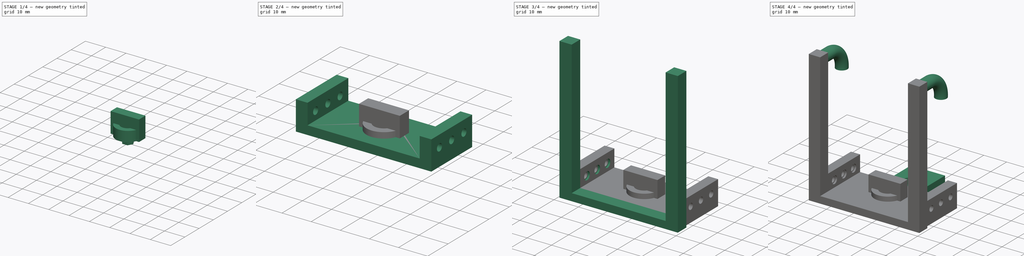
[diagram: build sequence overview — one tinted view per stage of 4, left to right]
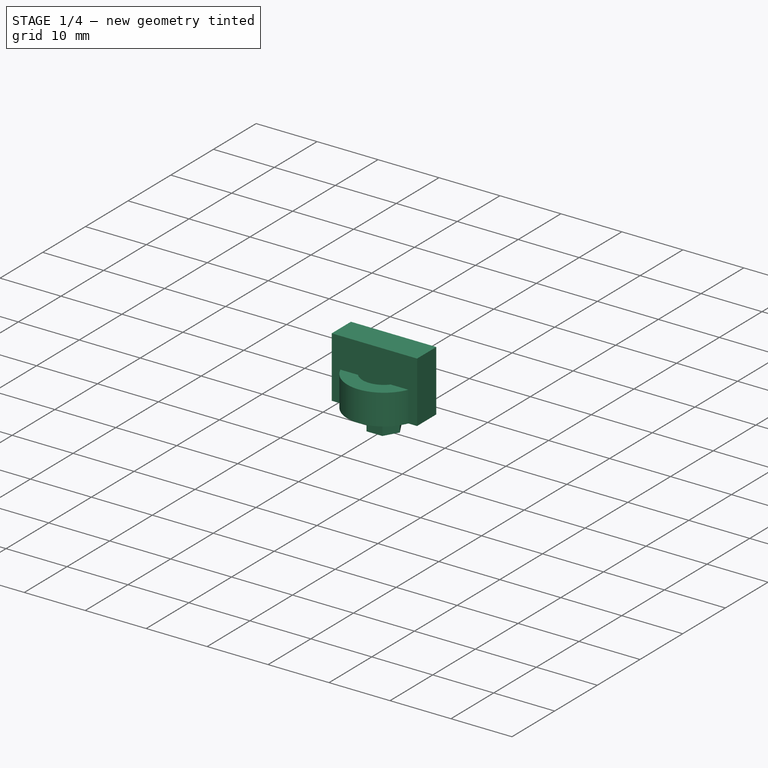
[diagram: stage 1 of 4 — iso view after this stage's code; geometry added in this stage tinted green]
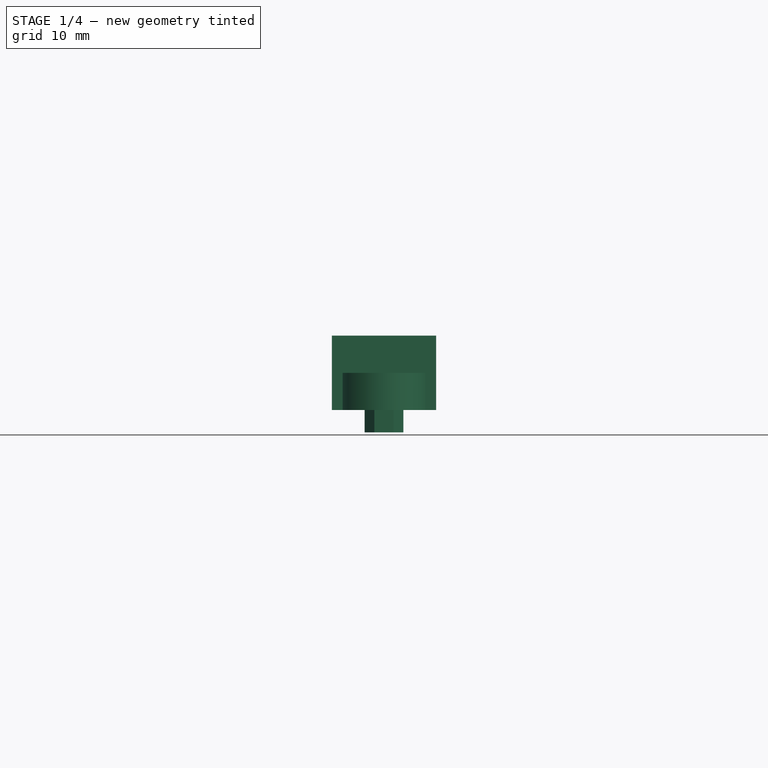
[diagram: stage 1 of 4 — front view after this stage's code; geometry added in this stage tinted green]
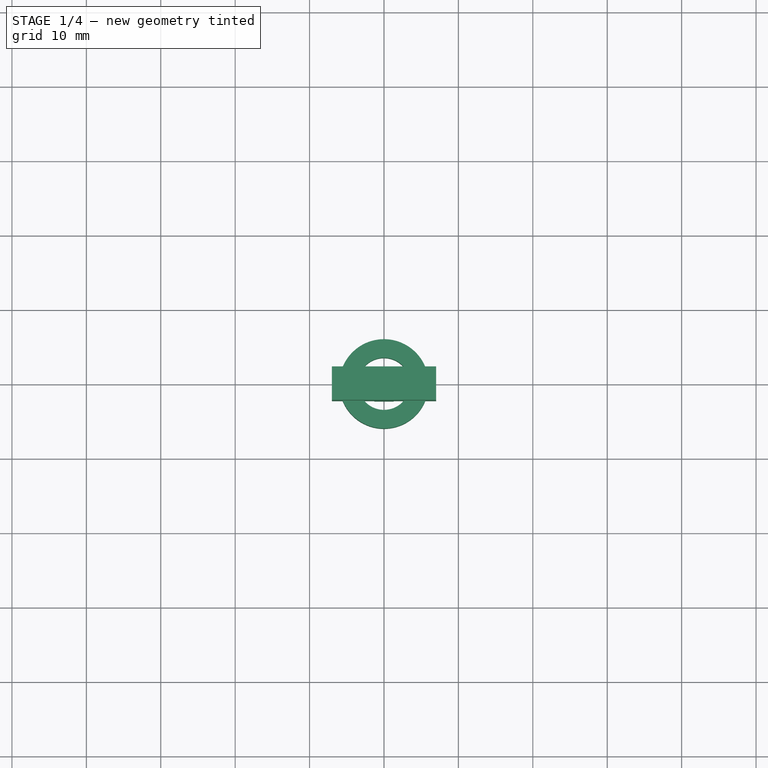
[diagram: stage 1 of 4 — top view after this stage's code; geometry added in this stage tinted green]
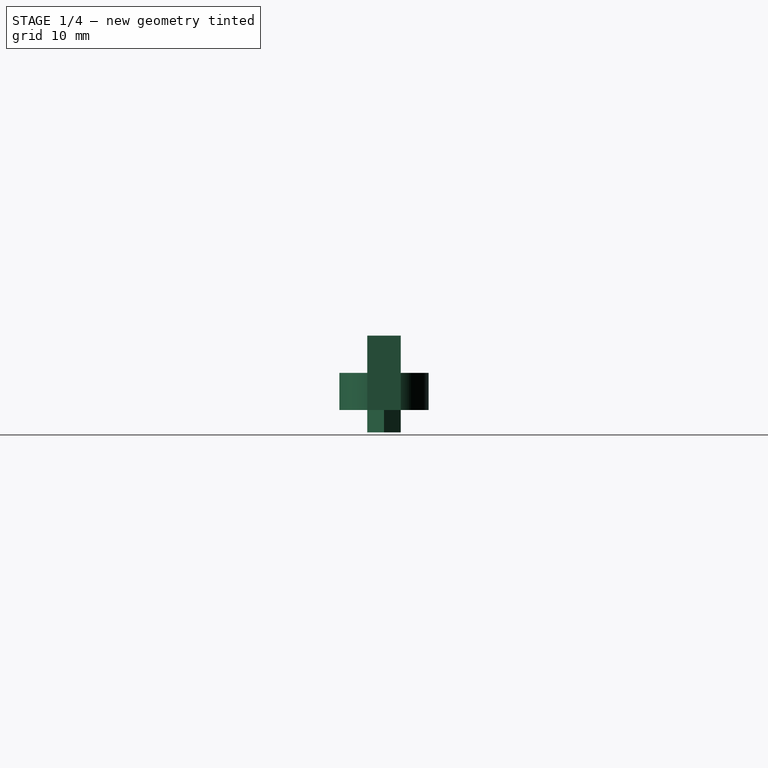
[diagram: stage 1 of 4 — right view after this stage's code; geometry added in this stage tinted green]
FCSTD DOCUMENT  (FreeCAD 0.19R24291 (Git))
Label: camerahd-holder
License: All rights reserved
LicenseURL: http://en.wikipedia.org/wiki/All_rights_reserved
objects: Sketcher::SketchObject×11, PartDesign::Pad×7, PartDesign::Body×3, PartDesign::Pocket×2, PartDesign::AdditivePipe×1, PartDesign::Mirrored×1
note: 35 computed .brp shape members not serialized (recipe doc carries the construction recipe); baked Part::Feature solids carry a one-line shape summary decoded from their .brp

FEATURE [PartDesign::Body] Body  label="-"
  Group = -> [Sketch,Pad,Sketch001,Pad001,Sketch002,Pocket,Sketch003,Pocket001,Sketch004,Pad002,Sketch005,Sketch006,AdditivePipe,Mirrored,Sketch007,Pad003]
  Origin = -> Origin
  Tip = -> Pad003
FEATURE [Sketcher::SketchObject] Sketch008
  FullyConstrained = true
  MapMode = 5
  Support = -> [XY_Plane001]
  sketch-geometry (2):
    g0: Circle CenterX=0 CenterY=0 CenterZ=0 NormalX=0 NormalY=0 NormalZ=1 AngleXU=0 Radius=6
    g1: Circle CenterX=0 CenterY=0 CenterZ=0 NormalX=0 NormalY=0 NormalZ=1 AngleXU=0 Radius=3.5
  constraints (4):
    c: Coincident(g0,g-1)
    c: Coincident(g1,g0)
    c: Diameter(g1) = 7
    c: Diameter(g0) = 12
FEATURE [PartDesign::Pad] Pad004
  Direction = (1,1,1)
  Length = 5
  Length2 = 100
  Profile = -> Sketch008
  Type = 0
FEATURE [PartDesign::Body] Body001  label="spacer"
  Group = -> [Sketch008,Pad004]
  Origin = -> Origin001
  Tip = -> Pad004
FEATURE [Sketcher::SketchObject] Sketch009
  FullyConstrained = true
  MapMode = 5
  Support = -> [XY_Plane002]
  sketch-geometry (7):
    g0: LineSegment StartX=-1.29904 StartY=-2.25 StartZ=0 EndX=1.29904 EndY=-2.25 EndZ=0
    g1: LineSegment StartX=1.29904 StartY=-2.25 StartZ=0 EndX=2.59808 EndY=1.1835e-11 EndZ=0
    g2: LineSegment StartX=2.59808 StartY=1.18348e-11 StartZ=0 EndX=1.29904 EndY=2.25 EndZ=0
    g3: LineSegment StartX=1.29904 StartY=2.25 StartZ=0 EndX=-1.29904 EndY=2.25 EndZ=0
    g4: LineSegment StartX=-1.29904 StartY=2.25 StartZ=0 EndX=-2.59808 EndY=-8.145e-13 EndZ=0
    g5: LineSegment StartX=-2.59808 StartY=-8.145e-13 StartZ=0 EndX=-1.29904 EndY=-2.25 EndZ=0
    g6: Circle CenterX=0 CenterY=0 CenterZ=0 NormalX=0 NormalY=0 NormalZ=1 AngleXU=0 Radius=2.59808
  constraints (16):
    c: Coincident(g0,g1)
    c: Coincident(g1,g2)
    c: Coincident(g2,g3)
    c: Coincident(g3,g4)
    c: Coincident(g4,g5)
    c: Coincident(g5,g0)
    c: Equal(g0, g1-g5) x5
    c: PointOnObject(g0,g6)
    c: PointOnObject(g1,g6)
    c: PointOnObject(g2,g6)
    c: PointOnObject(g3,g6)
    c: PointOnObject(g4,g6)
    c: PointOnObject(g5,g6)
    c: Coincident(g6,g-1)
    c: DistanceY(g0,g3) = 4.5
    c: Horizontal(g0)
FEATURE [PartDesign::Pad] Pad005
  Direction = (1,1,1)
  Length = 3
  Length2 = 100
  Profile = -> Sketch009
  Reversed = true
  Type = 0
FEATURE [Sketcher::SketchObject] Sketch010
  FullyConstrained = true
  MapMode = 5
  Support = -> [XY_Plane002]
  sketch-geometry (4):
    g0: LineSegment StartX=-7 StartY=2.25 StartZ=0 EndX=7 EndY=2.25 EndZ=0
    g1: LineSegment StartX=7 StartY=2.25 StartZ=0 EndX=7 EndY=-2.25 EndZ=0
    g2: LineSegment StartX=7 StartY=-2.25 StartZ=0 EndX=-7 EndY=-2.25 EndZ=0
    g3: LineSegment StartX=-7 StartY=-2.25 StartZ=0 EndX=-7 EndY=2.25 EndZ=0
  constraints (10):
    c: Coincident(g0,g1)
    c: Coincident(g1,g2)
    c: Coincident(g2,g3)
    c: Coincident(g3,g0)
    c: Horizontal(g2)
    c: Vertical(g3)
    c: Symmetric(g1,g0,g-1)
    c: DistanceY(g1,g1) = 4.5
    c: Symmetric(g0,g0,g-2)
    c: DistanceX(g0,g0) = 14
FEATURE [PartDesign::Pad] Pad006
  BaseFeature = -> Pad005
  Direction = (1,1,1)
  Length = 10
  Length2 = 100
  Profile = -> Sketch010
  Type = 0
FEATURE [PartDesign::Body] Body002  label="bits"
  Group = -> [Sketch009,Pad005,Sketch010,Pad006]
  Origin = -> Origin002
  Tip = -> Pad006
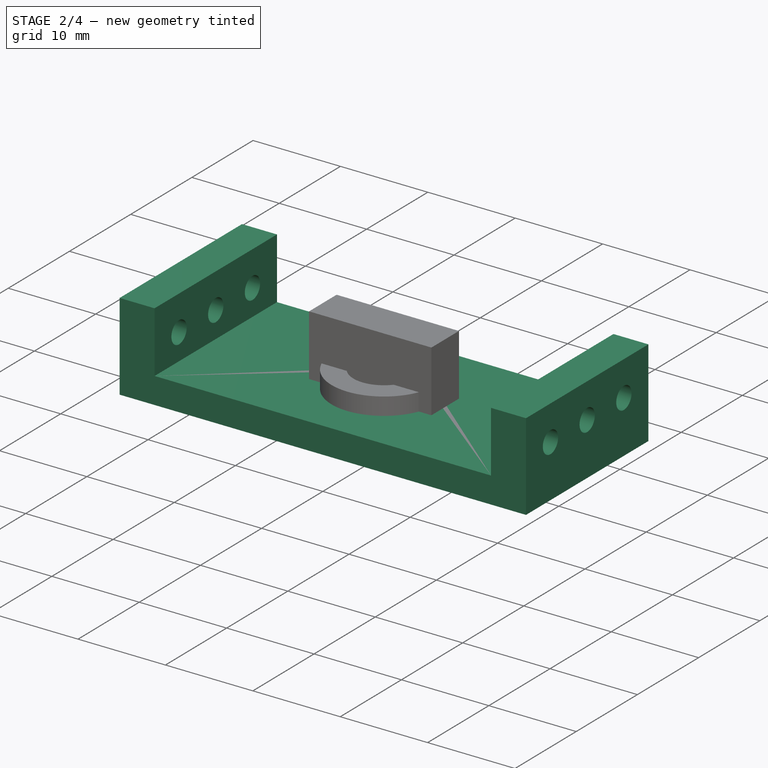
[diagram: stage 2 of 4 — iso view after this stage's code; geometry added in this stage tinted green]
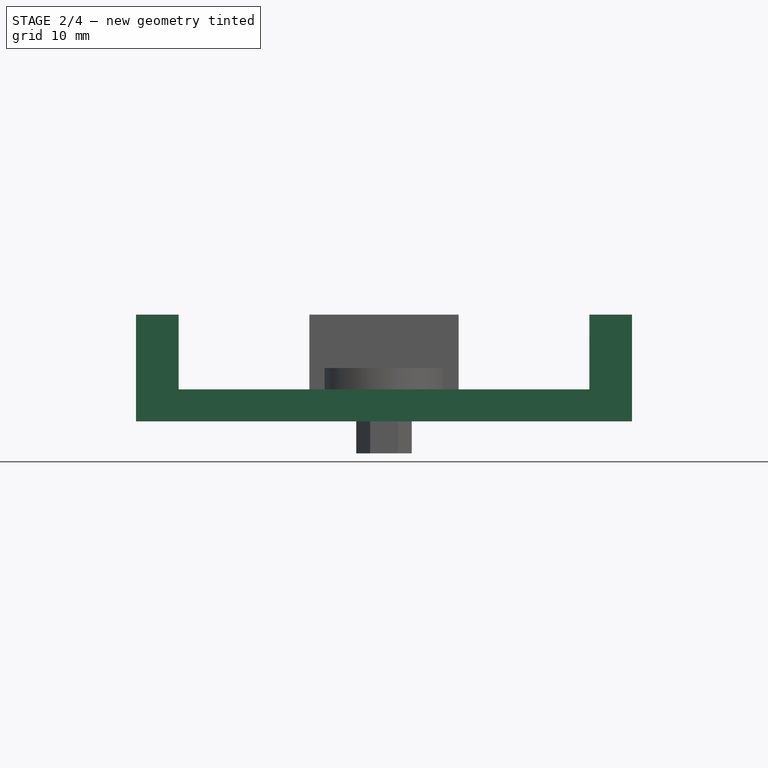
[diagram: stage 2 of 4 — front view after this stage's code; geometry added in this stage tinted green]
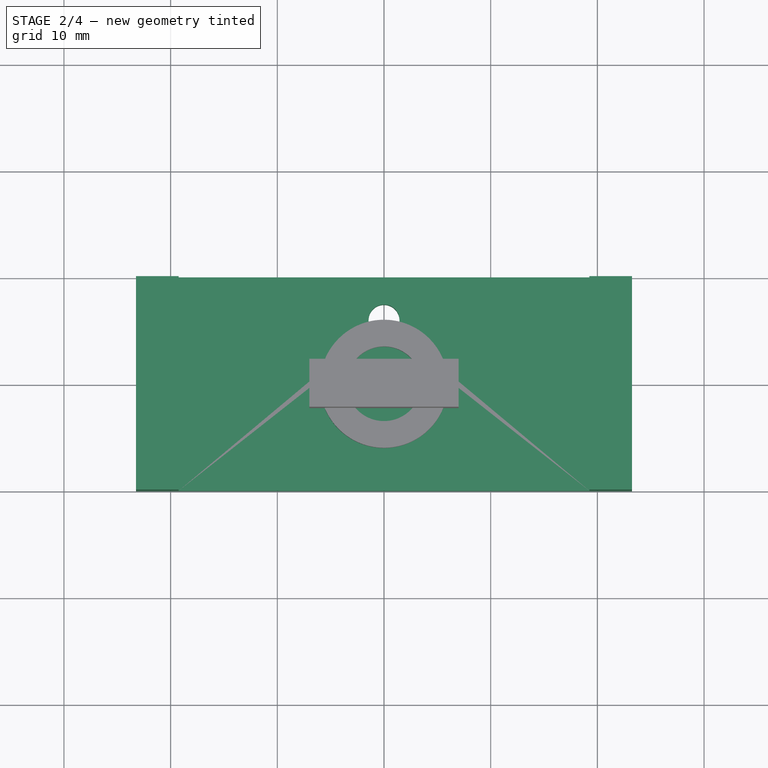
[diagram: stage 2 of 4 — top view after this stage's code; geometry added in this stage tinted green]
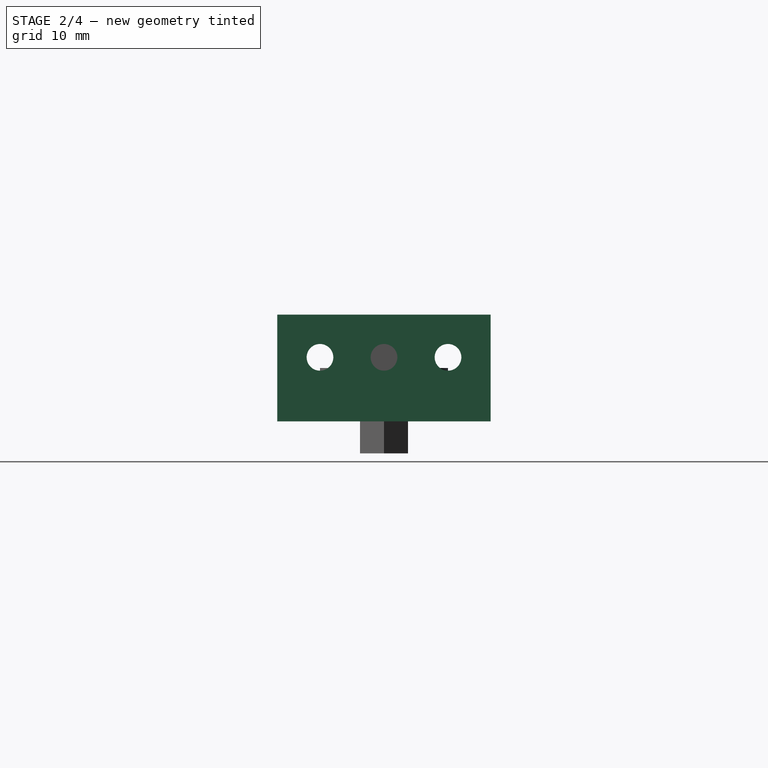
[diagram: stage 2 of 4 — right view after this stage's code; geometry added in this stage tinted green]
FEATURE [Sketcher::SketchObject] Sketch
  FullyConstrained = true
  MapMode = 5
  Support = -> [XY_Plane]
  sketch-geometry (5):
    g0: LineSegment StartX=-19.25 StartY=10 StartZ=0 EndX=19.25 EndY=10 EndZ=0
    g1: LineSegment StartX=19.25 StartY=10 StartZ=0 EndX=19.25 EndY=-10 EndZ=0
    g2: LineSegment StartX=19.25 StartY=-10 StartZ=0 EndX=-19.25 EndY=-10 EndZ=0
    g3: LineSegment StartX=-19.25 StartY=-10 StartZ=0 EndX=-19.25 EndY=10 EndZ=0
    g4: Circle CenterX=0 CenterY=6 CenterZ=0 NormalX=0 NormalY=0 NormalZ=1 AngleXU=0 Radius=1.45
  constraints (13):
    c: Coincident(g0,g1)
    c: Coincident(g1,g2)
    c: Coincident(g2,g3)
    c: Coincident(g3,g0)
    c: Horizontal(g2)
    c: Vertical(g3)
    c: Symmetric(g1,g0,g-1)
    c: Symmetric(g0,g0,g-2)
    c: DistanceX(g0,g0) = 38.5
    c: DistanceY(g3,g3) = 20
    c: Diameter(g4) = 2.9
    c: PointOnObject(g4,g-2)
    c: DistanceY(g-1,g4) = 6
FEATURE [PartDesign::Pad] Pad
  Direction = (1,1,1)
  Length = 3
  Length2 = 100
  Profile = -> Sketch
  Type = 0
FEATURE [Sketcher::SketchObject] Sketch001
  FullyConstrained = true
  MapMode = 5
  Placement = pos=(0,0,0) rot=(1,0,0;1.5708rad)
  Support = -> [XZ_Plane]
  sketch-geometry (8):
    g0: LineSegment StartX=19.25 StartY=0 StartZ=0 EndX=23.25 EndY=0 EndZ=0
    g1: LineSegment StartX=23.25 StartY=0 StartZ=0 EndX=23.25 EndY=10 EndZ=0
    g2: LineSegment StartX=23.25 StartY=10 StartZ=0 EndX=19.25 EndY=10 EndZ=0
    g3: LineSegment StartX=19.25 StartY=10 StartZ=0 EndX=19.25 EndY=0 EndZ=0
    g4: LineSegment StartX=-23.25 StartY=10 StartZ=0 EndX=-19.25 EndY=10 EndZ=0
    g5: LineSegment StartX=-19.25 StartY=10 StartZ=0 EndX=-19.25 EndY=0 EndZ=0
    g6: LineSegment StartX=-19.25 StartY=0 StartZ=0 EndX=-23.25 EndY=0 EndZ=0
    g7: LineSegment StartX=-23.25 StartY=0 StartZ=0 EndX=-23.25 EndY=10 EndZ=0
  constraints (23):
    c: Coincident(g0,g1)
    c: Coincident(g1,g2)
    c: Coincident(g2,g3)
    c: Coincident(g3,g0)
    c: Horizontal(g0)
    c: Horizontal(g2)
    c: Vertical(g1)
    c: Vertical(g3)
    c: PointOnObject(g0,g-1)
    c: DistanceX(g0) = 19.25
    c: DistanceX(g2,g2) = 4
    c: DistanceY(g1,g1) = 10
    c: Coincident(g4,g5)
    c: Coincident(g5,g6)
    c: Coincident(g6,g7)
    c: Coincident(g7,g4)
    c: Horizontal(g4)
    c: Horizontal(g6)
    c: Vertical(g5)
    c: Vertical(g7)
    c: Symmetric(g5,g0,g-2)
    c: Horizontal(g4,g2)
    c: Equal(g4,g2)
FEATURE [PartDesign::Pad] Pad001
  BaseFeature = -> Pad
  Direction = (1,1,1)
  Length = 20
  Length2 = 100
  Midplane = true
  Profile = -> Sketch001
  Type = 0
FEATURE [Sketcher::SketchObject] Sketch002
  FullyConstrained = true
  MapMode = 5
  Placement = pos=(-23.25,0,0) rot=(0.57735,-0.57735,-0.57735;2.0944rad)
  Support = -> [Pad001]
  sketch-geometry (3):
    g0: Circle CenterX=-6 CenterY=6 CenterZ=0 NormalX=0 NormalY=0 NormalZ=1 AngleXU=0 Radius=1.25
    g1: Circle CenterX=6 CenterY=6 CenterZ=0 NormalX=0 NormalY=0 NormalZ=1 AngleXU=0 Radius=1.25
    g2: Circle CenterX=0 CenterY=6 CenterZ=0 NormalX=0 NormalY=0 NormalZ=1 AngleXU=0 Radius=1.25
  constraints (8):
    c: PointOnObject(g2,g-2)
    c: Diameter(g1) = 2.5
    c: Equal(g1,g2)
    c: Equal(g1,g0)
    c: Symmetric(g0,g1,g-2)
    c: Horizontal(g0,g2)
    c: DistanceX(g0,g2) = 6
    c: DistanceY(g-1,g2) = 6
FEATURE [PartDesign::Pocket] Pocket
  BaseFeature = -> Pad001
  Length = 5
  Length2 = 100
  Profile = -> Sketch002
  Type = 1
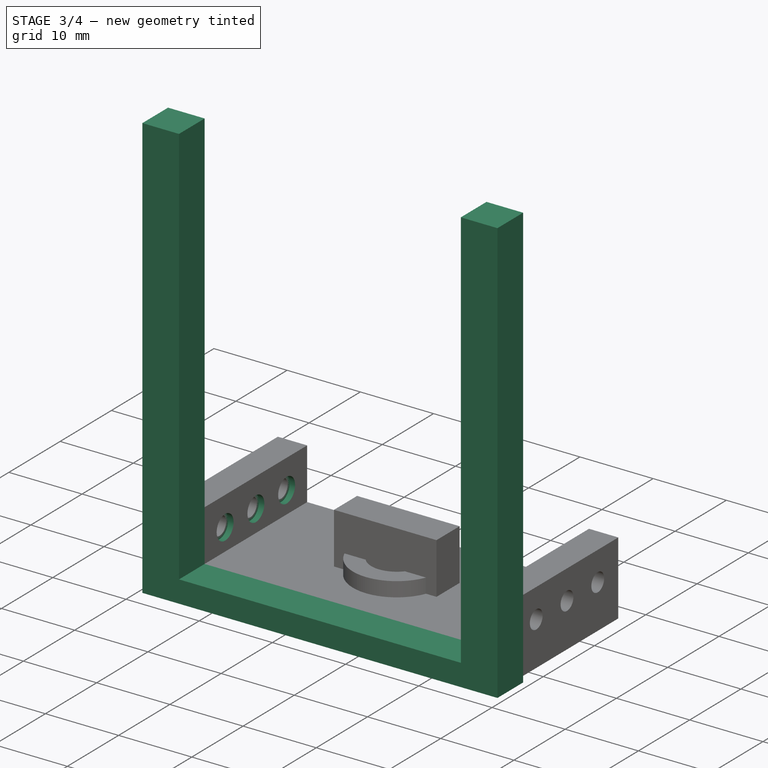
[diagram: stage 3 of 4 — iso view after this stage's code; geometry added in this stage tinted green]
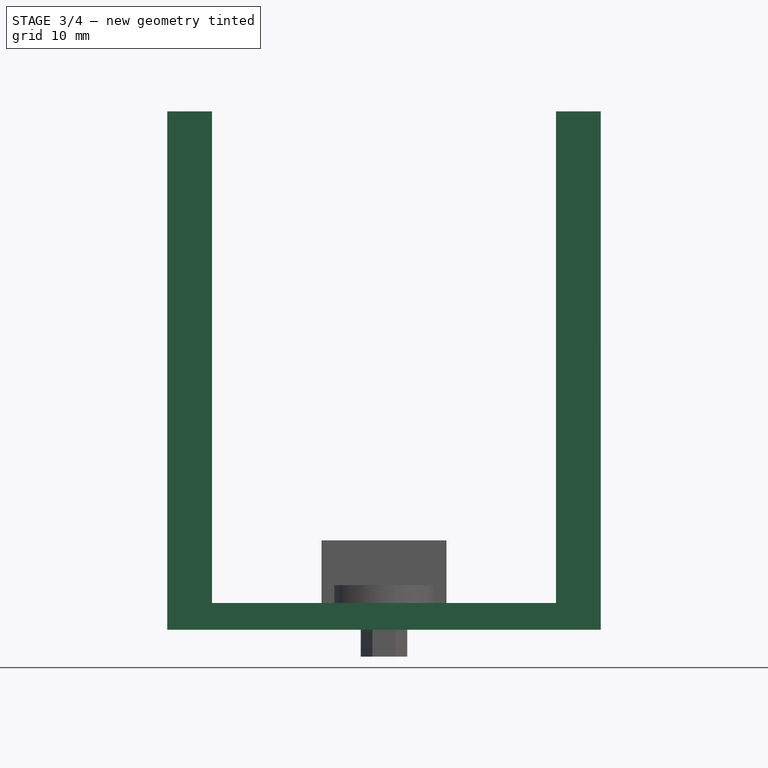
[diagram: stage 3 of 4 — front view after this stage's code; geometry added in this stage tinted green]
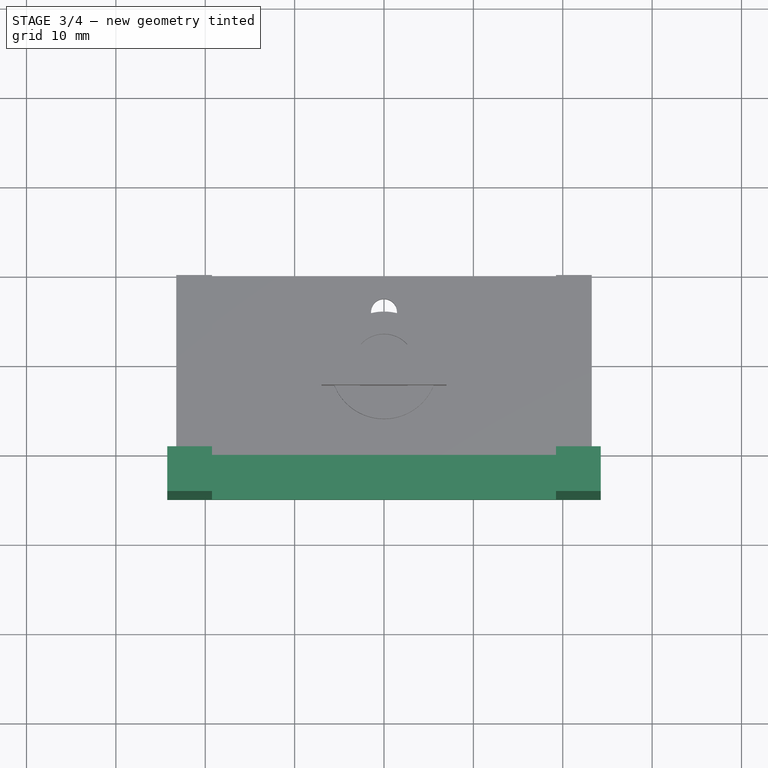
[diagram: stage 3 of 4 — top view after this stage's code; geometry added in this stage tinted green]
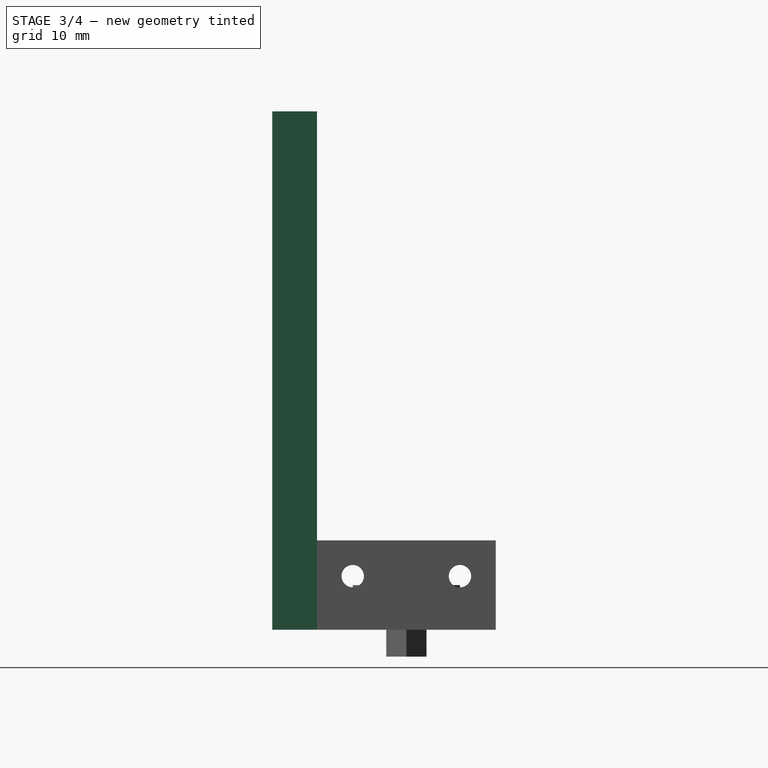
[diagram: stage 3 of 4 — right view after this stage's code; geometry added in this stage tinted green]
FEATURE [Sketcher::SketchObject] Sketch003
  FullyConstrained = true
  MapMode = 5
  Placement = pos=(0,0,0) rot=(0.57735,0.57735,0.57735;2.0944rad)
  Support = -> [YZ_Plane]
  sketch-geometry (3):
    g0: Circle CenterX=0 CenterY=6 CenterZ=0 NormalX=0 NormalY=0 NormalZ=1 AngleXU=0 Radius=1.65
    g1: Circle CenterX=6 CenterY=6 CenterZ=0 NormalX=0 NormalY=0 NormalZ=1 AngleXU=0 Radius=1.65
    g2: Circle CenterX=-6 CenterY=6 CenterZ=0 NormalX=0 NormalY=0 NormalZ=1 AngleXU=0 Radius=1.65
  constraints (8):
    c: PointOnObject(g0,g-2)
    c: Horizontal(g1,g0)
    c: Symmetric(g2,g1,g-2)
    c: DistanceX(g2,g1) = 12
    c: DistanceY(g0) = 6
    c: Diameter(g2) = 3.3
    c: Equal(g2,g0)
    c: Equal(g2,g1)
FEATURE [PartDesign::Pocket] Pocket001
  BaseFeature = -> Pocket
  Length = 40
  Length2 = 100
  Midplane = true
  Profile = -> Sketch003
  Type = 0
FEATURE [Sketcher::SketchObject] Sketch004
  FullyConstrained = true
  MapMode = 5
  Placement = pos=(0,-10,0) rot=(1,0,0;1.5708rad)
  Support = -> [Pocket001]
  sketch-geometry (10):
    g0: LineSegment StartX=19.25 StartY=0 StartZ=0 EndX=24.25 EndY=0 EndZ=0
    g1: LineSegment StartX=24.25 StartY=0 StartZ=0 EndX=24.25 EndY=58 EndZ=0
    g2: LineSegment StartX=24.25 StartY=58 StartZ=0 EndX=19.25 EndY=58 EndZ=0
    g3: LineSegment StartX=-24.25 StartY=58 StartZ=0 EndX=-19.25 EndY=58 EndZ=0
    g4: LineSegment StartX=-19.25 StartY=0 StartZ=0 EndX=-24.25 EndY=0 EndZ=0
    g5: LineSegment StartX=-24.25 StartY=0 StartZ=0 EndX=-24.25 EndY=58 EndZ=0
    g6: LineSegment StartX=-19.25 StartY=58 StartZ=0 EndX=-19.25 EndY=3 EndZ=0
    g7: LineSegment StartX=19.25 StartY=58 StartZ=0 EndX=19.25 EndY=3 EndZ=0
    g8: LineSegment StartX=-19.25 StartY=3 StartZ=0 EndX=19.25 EndY=3 EndZ=0
    g9: LineSegment StartX=-19.25 StartY=0 StartZ=0 EndX=19.25 EndY=0 EndZ=0
  constraints (29):
    c: Coincident(g0,g1)
    c: Coincident(g1,g2)
    c: Horizontal(g0)
    c: Horizontal(g2)
    c: Vertical(g1)
    c: PointOnObject(g0,g-1)
    c: DistanceY(g0,g2) = 58
    c: DistanceX(g-1,g0) = 19.25
    c: DistanceX(g0,g0) = 5
    c: Coincident(g4,g5)
    c: Coincident(g5,g3)
    c: Horizontal(g3)
    c: Horizontal(g4)
    c: Vertical(g5)
    c: Symmetric(g4,g0,g-2)
    c: Equal(g3,g2)
    c: Equal(g5,g1)
    c: Coincident(g6,g3)
    c: Vertical(g6)
    c: Coincident(g7,g2)
    c: Vertical(g7)
    c: Coincident(g8,g6)
    c: Coincident(g8,g7)
    c: Horizontal(g8)
    c: Vertical(g6,g4)
    c: Vertical(g7,g0)
    c: DistanceY(g4,g6) = 3
    c: Coincident(g9,g4)
    c: Coincident(g9,g0)
FEATURE [PartDesign::Pad] Pad002  label="tiang001"
  BaseFeature = -> Pocket001
  Direction = (1,1,1)
  Length = 5
  Length2 = 100
  Profile = -> Sketch004
  Type = 0
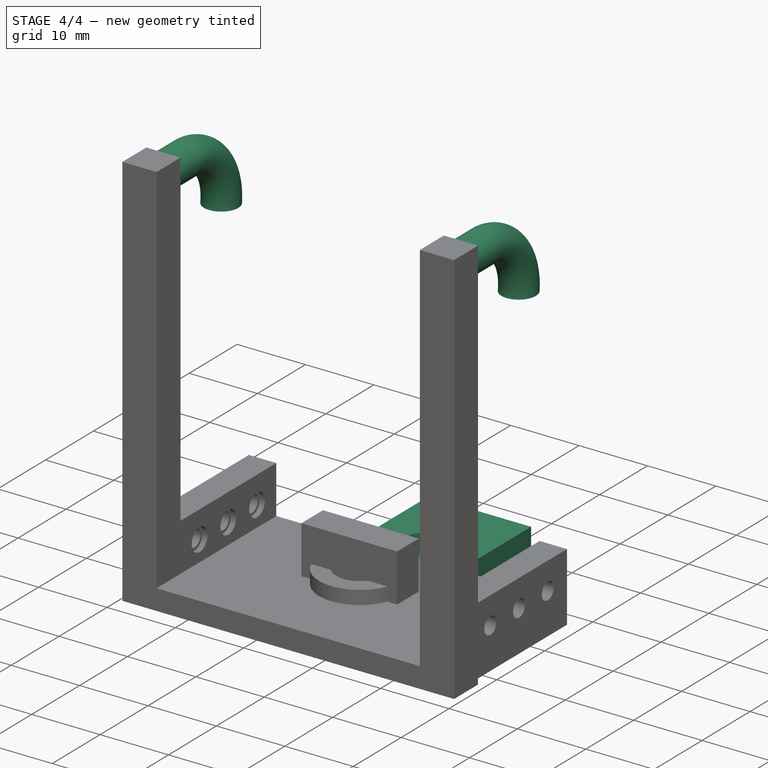
[diagram: stage 4 of 4 — iso view after this stage's code; geometry added in this stage tinted green]
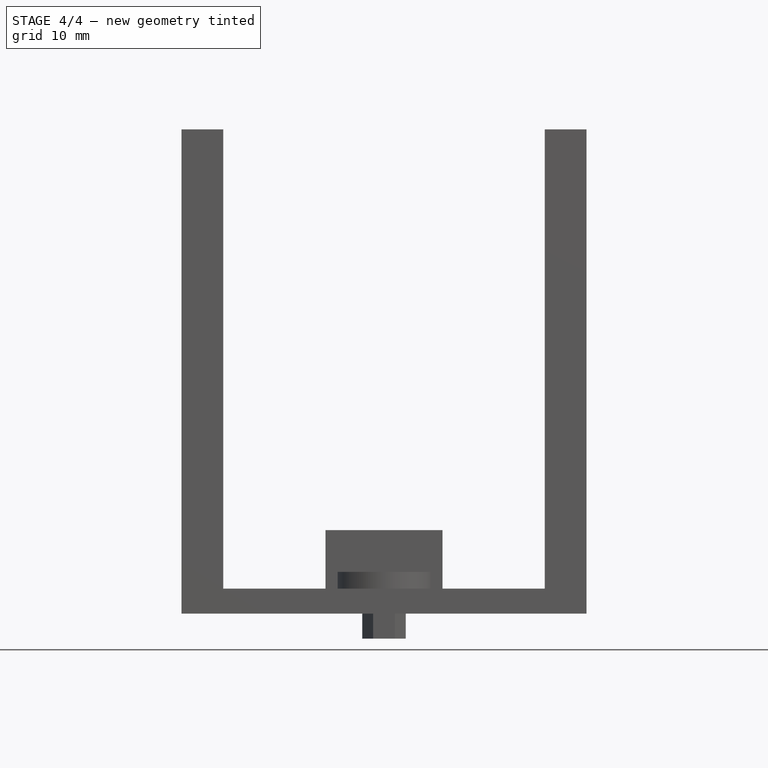
[diagram: stage 4 of 4 — front view after this stage's code; geometry added in this stage tinted green]
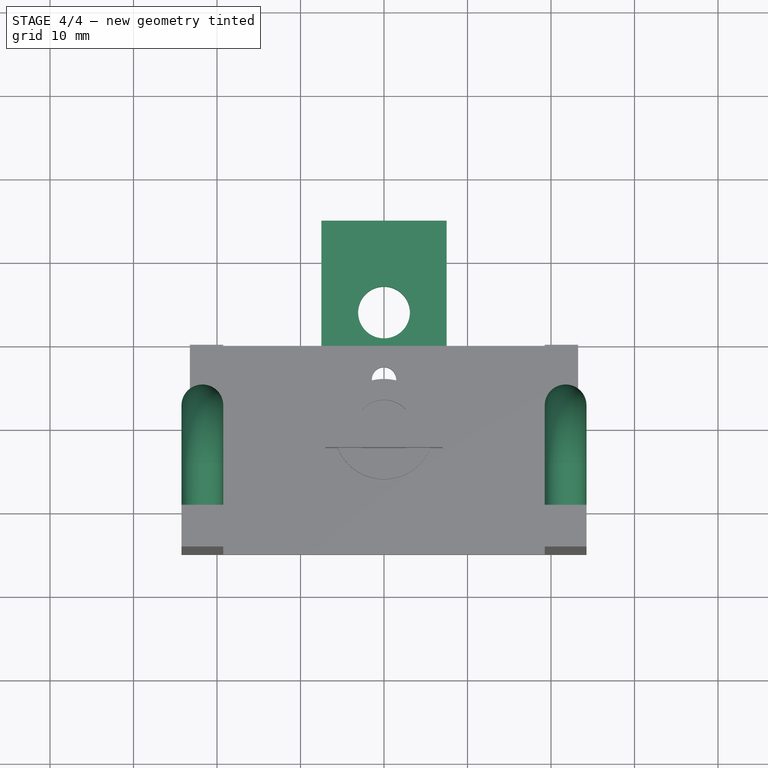
[diagram: stage 4 of 4 — top view after this stage's code; geometry added in this stage tinted green]
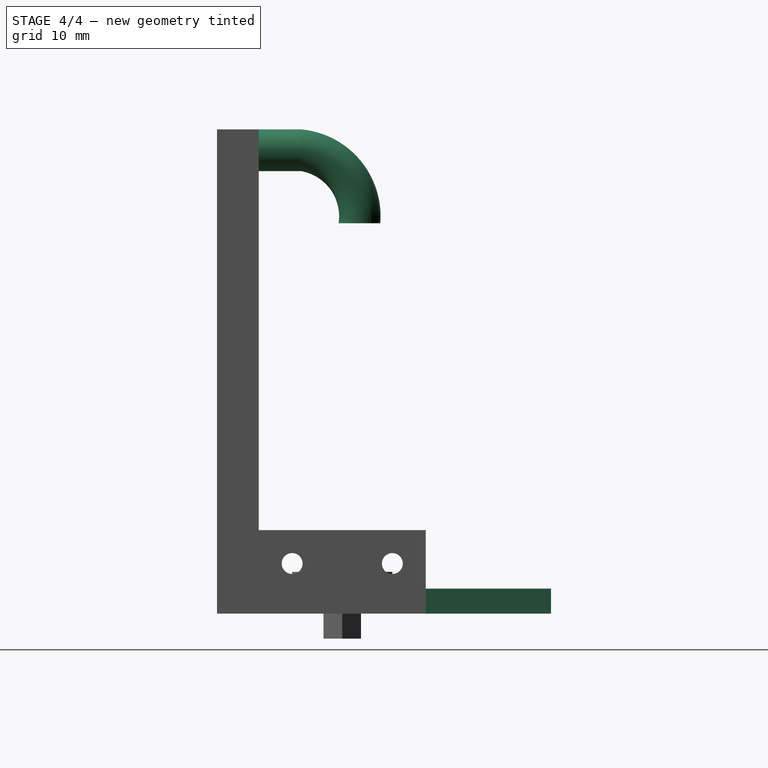
[diagram: stage 4 of 4 — right view after this stage's code; geometry added in this stage tinted green]
FEATURE [Sketcher::SketchObject] Sketch005
  FullyConstrained = true
  MapMode = 5
  Placement = pos=(0,-10,2.2e-15) rot=(0,0.707107,0.707107;3.14159rad)
  Support = -> [Pad002]
  sketch-geometry (1):
    g0: Circle CenterX=21.75 CenterY=55.5 CenterZ=0 NormalX=0 NormalY=0 NormalZ=1 AngleXU=0 Radius=2.5
  constraints (3):
    c: Diameter(g0) = 5
    c: DistanceX(g0) = 21.75
    c: DistanceY(g0) = 55.5
FEATURE [Sketcher::SketchObject] Sketch006
  AttachmentOffset = pos=(0,0,-21.75) rot=(0,0,1;0rad)
  FullyConstrained = false
  MapMode = 5
  Placement = pos=(-21.75,4.8e-15,-4.8e-15) rot=(0.57735,0.57735,0.57735;2.0944rad)
  Support = -> [YZ_Plane]
  sketch-geometry (2):
    g0: LineSegment StartX=-10 StartY=55.55 StartZ=0 EndX=-5 EndY=55.55 EndZ=0
    g1: ArcOfCircle CenterX=-5.84889 CenterY=47.5952 CenterZ=0 NormalX=0 NormalY=0 NormalZ=1 AngleXU=0 Radius=8 StartAngle=6.17687 EndAngle=7.74767
  constraints (7):
    c: Horizontal(g0)
    c: DistanceY(g0) = 55.55
    c: DistanceX(g0,g0) = 5
    c: DistanceX(g0) = -10
    c: Coincident(g1,g0)
    c: Angle(g1) = 1.5708
    c: Radius(g1) = 8
FEATURE [PartDesign::AdditivePipe] AdditivePipe  label="cantol"
  AuxilleryCurvelinear = true
  AuxillerySpineTangent = false
  BaseFeature = -> Pad002
  Binormal = (0,0,0)
  Mode = 0
  Profile = -> Sketch005
  Spine = -> Sketch006
  SpineTangent = false
  Transformation = 0
  Transition = 0
FEATURE [PartDesign::Mirrored] Mirrored
  BaseFeature = -> AdditivePipe
  MirrorPlane = -> Sketch005 [V_Axis]
  Originals = -> [AdditivePipe]
FEATURE [Sketcher::SketchObject] Sketch007
  FullyConstrained = true
  MapMode = 5
  Support = -> [XY_Plane]
  sketch-geometry (5):
    g0: LineSegment StartX=-7.5 StartY=10 StartZ=0 EndX=7.5 EndY=10 EndZ=0
    g1: LineSegment StartX=7.5 StartY=10 StartZ=0 EndX=7.5 EndY=25 EndZ=0
    g2: LineSegment StartX=7.5 StartY=25 StartZ=0 EndX=-7.5 EndY=25 EndZ=0
    g3: LineSegment StartX=-7.5 StartY=25 StartZ=0 EndX=-7.5 EndY=10 EndZ=0
    g4: Circle CenterX=0 CenterY=14 CenterZ=0 NormalX=0 NormalY=0 NormalZ=1 AngleXU=0 Radius=3.1
  constraints (14):
    c: Coincident(g0,g1)
    c: Coincident(g1,g2)
    c: Coincident(g2,g3)
    c: Coincident(g3,g0)
    c: Horizontal(g2)
    c: Vertical(g1)
    c: Vertical(g3)
    c: Symmetric(g0,g0,g-2)
    c: DistanceX(g2,g2) = 15
    c: DistanceY(g0) = 10
    c: DistanceY(g3,g3) = 15
    c: PointOnObject(g4,g-2)
    c: Diameter(g4) = 6.2
    c: DistanceY(g4) = 14
FEATURE [PartDesign::Pad] Pad003
  BaseFeature = -> Mirrored
  Direction = (1,1,1)
  Length = 3
  Length2 = 100
  Profile = -> Sketch007
  Type = 0
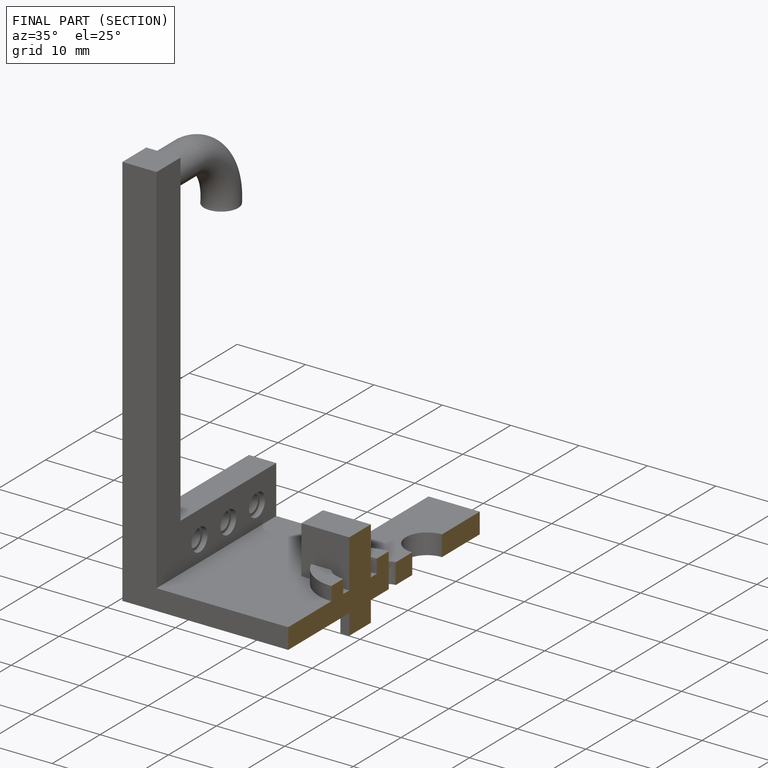
[diagram: finished part — half-section view (interior)]
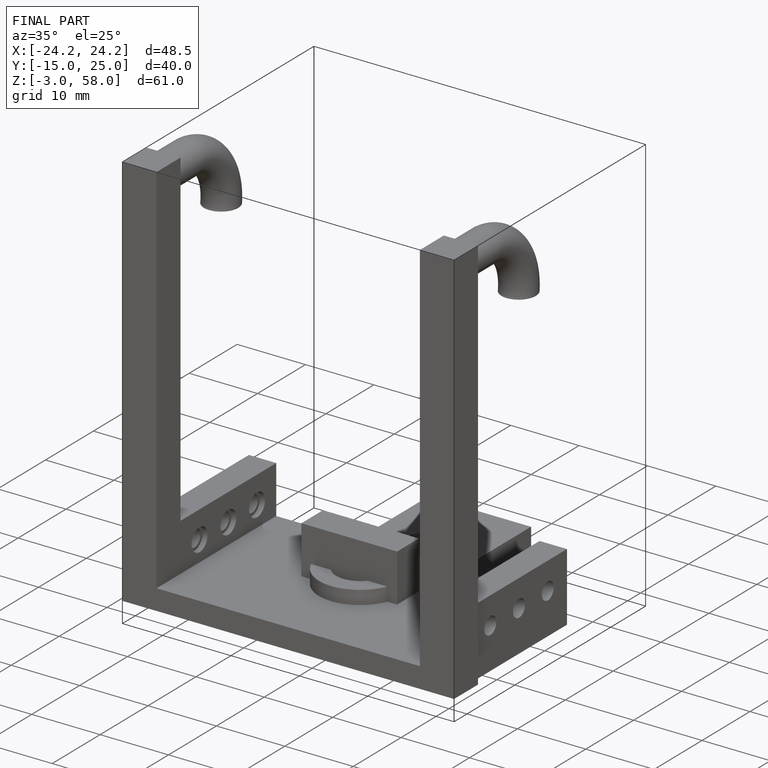
[diagram: finished part — iso view with bounding-box wireframe]
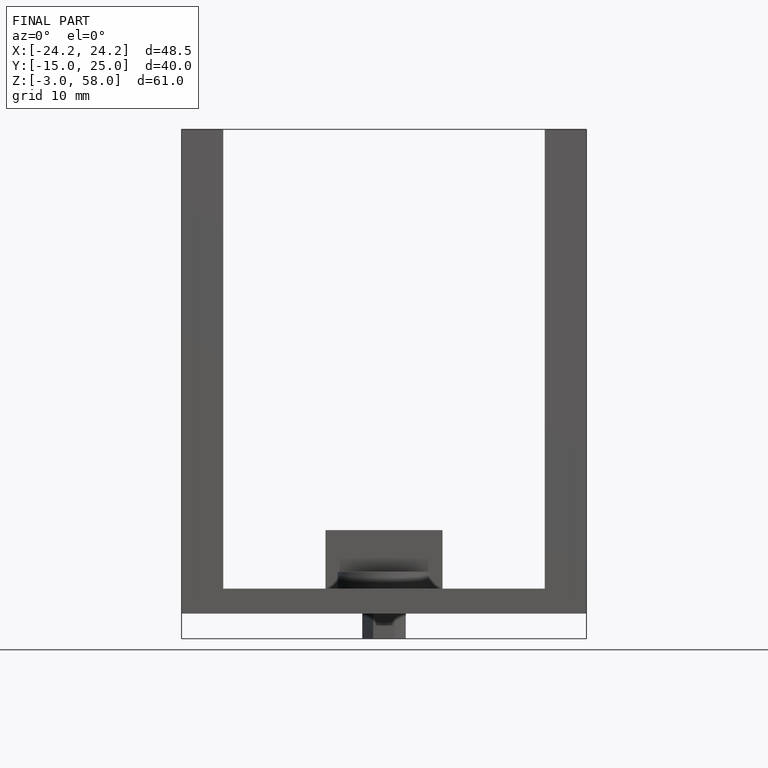
[diagram: finished part — front view with bounding-box wireframe]
